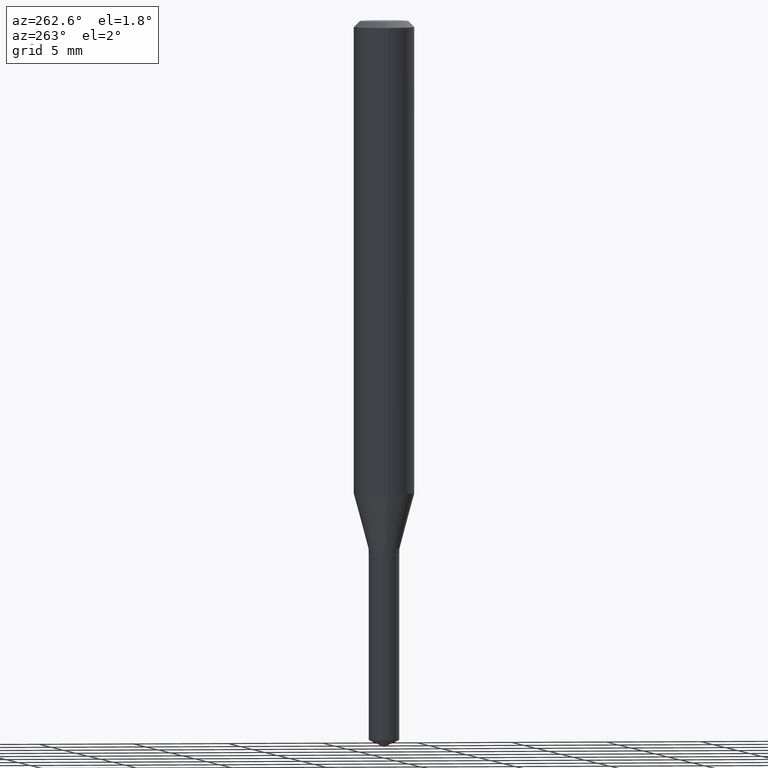
[diagram: clean part render]
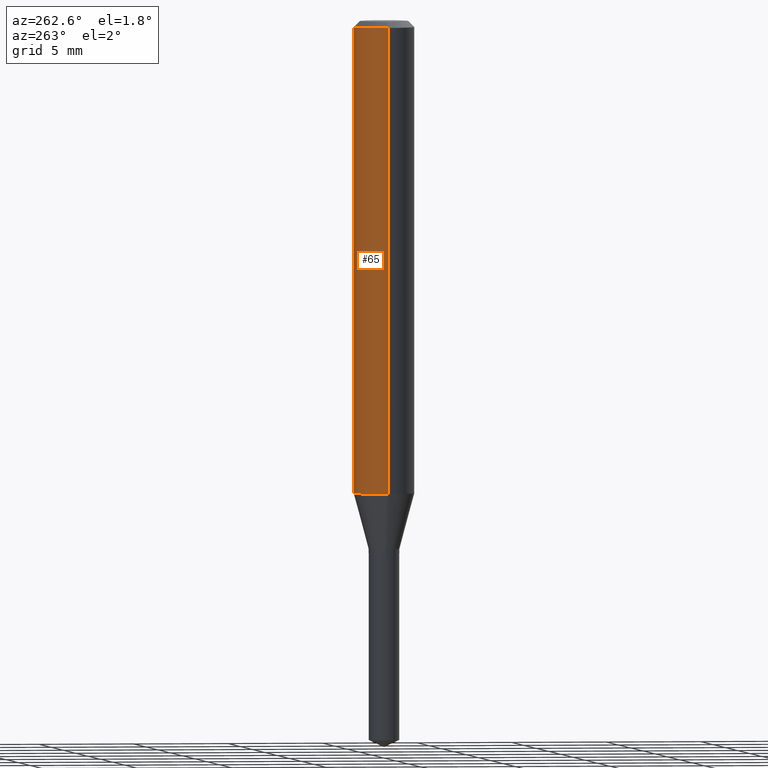
[diagram: same view with one face highlighted and labeled with its STEP entity id]
A machine part, auxiliary view. The second image highlights one B-rep face of the part: STEP entity #65.
In plain terms, the highlighted cylindrical surface (edge-blend (fillet) strip) has radius 1.5875 mm, axis along (-0, 0, 1).
Its self-contained STEP definition (entity closure, byte-faithful):
#17 = ORIENTED_EDGE ( 'NONE', *, *, #320, .T. ) ;
#27 = CYLINDRICAL_SURFACE ( 'NONE', #166, 0.06250000000000005551 ) ;
#44 = LINE ( 'NONE', #268, #149 ) ;
#51 = VERTEX_POINT ( 'NONE', #405 ) ;
#65 = ADVANCED_FACE ( 'NONE', ( #447 ), #27, .T. ) ;
#83 = VECTOR ( 'NONE', #110, 39.37007874015748143 ) ;
#94 = DIRECTION ( 'NONE',  ( -2.445468806185136877E-29, 3.491481338843145188E-15, 1.000000000000000000 ) ) ;
#98 = CIRCLE ( 'NONE', #354, 0.06250000000000012490 ) ;
#110 = DIRECTION ( 'NONE',  ( -2.445468806185136877E-29, 3.491481338843145188E-15, 1.000000000000000000 ) ) ;
#124 = VERTEX_POINT ( 'NONE', #402 ) ;
#128 = CARTESIAN_POINT ( 'NONE',  ( 0.06250000000000012490, -3.843211205543924490E-15, -0.9757394376672569036 ) ) ;
#130 = ORIENTED_EDGE ( 'NONE', *, *, #461, .F. ) ;
#145 = EDGE_CURVE ( 'NONE', #51, #430, #251, .T. ) ;
#149 = VECTOR ( 'NONE', #94, 39.37007874015748143 ) ;
#151 = EDGE_CURVE ( 'NONE', #230, #124, #98, .T. ) ;
#152 = CARTESIAN_POINT ( 'NONE',  ( 2.386140357779903165E-29, -3.406776038188532032E-15, -0.9757394376672569036 ) ) ;
#166 = AXIS2_PLACEMENT_3D ( 'NONE', #249, #185, #409 ) ;
#185 = DIRECTION ( 'NONE',  ( -2.445468806185136597E-29, 3.491481338843145583E-15, 1.000000000000000000 ) ) ;
#188 = CARTESIAN_POINT ( 'NONE',  ( 3.056836007731442729E-31, -4.364351673553962300E-17, -0.01250000000000008916 ) ) ;
#230 = VERTEX_POINT ( 'NONE', #128 ) ;
#238 = LINE ( 'NONE', #401, #83 ) ;
#249 = CARTESIAN_POINT ( 'NONE',  ( 0.000000000000000000, 0.000000000000000000, 0.000000000000000000 ) ) ;
#251 = CIRCLE ( 'NONE', #388, 0.06250000000000000000 ) ;
#268 = CARTESIAN_POINT ( 'NONE',  ( -0.06250000000000005551, 4.440892098500630106E-16, -3.074334431409318916E-30 ) ) ;
#270 = DIRECTION ( 'NONE',  ( -2.445468806185136597E-29, 3.491481338843145583E-15, 1.000000000000000000 ) ) ;
#277 = CARTESIAN_POINT ( 'NONE',  ( -0.06250000000000000000, -1.281120567611971997E-15, -0.01250000000000008916 ) ) ;
#300 = DIRECTION ( 'NONE',  ( 1.000000000000000000, -6.982962677686264344E-15, 0.000000000000000000 ) ) ;
#314 = EDGE_LOOP ( 'NONE', ( #460, #17, #316, #130 ) ) ;
#316 = ORIENTED_EDGE ( 'NONE', *, *, #145, .F. ) ;
#320 = EDGE_CURVE ( 'NONE', #124, #430, #44, .T. ) ;
#329 = DIRECTION ( 'NONE',  ( -2.445468806185136597E-29, 3.491481338843145583E-15, 1.000000000000000000 ) ) ;
#354 = AXIS2_PLACEMENT_3D ( 'NONE', #152, #270, #300 ) ;
#388 = AXIS2_PLACEMENT_3D ( 'NONE', #188, #329, #480 ) ;
#401 = CARTESIAN_POINT ( 'NONE',  ( 0.06250000000000005551, -4.364351673553921131E-16, 3.047610484872463023E-30 ) ) ;
#402 = CARTESIAN_POINT ( 'NONE',  ( -0.06250000000000012490, -2.962686828338469022E-15, -0.9757394376672569036 ) ) ;
#405 = CARTESIAN_POINT ( 'NONE',  ( 0.06250000000000000000, -4.800786840909313294E-16, -0.01250000000000008916 ) ) ;
#409 = DIRECTION ( 'NONE',  ( 1.000000000000000000, -6.982962677686267499E-15, 4.876176775795936353E-29 ) ) ;
#430 = VERTEX_POINT ( 'NONE', #277 ) ;
#447 = FACE_OUTER_BOUND ( 'NONE', #314, .T. ) ;
#460 = ORIENTED_EDGE ( 'NONE', *, *, #151, .T. ) ;
#461 = EDGE_CURVE ( 'NONE', #230, #51, #238, .T. ) ;
#480 = DIRECTION ( 'NONE',  ( 1.000000000000000000, -6.982962677686266711E-15, 0.000000000000000000 ) ) ;